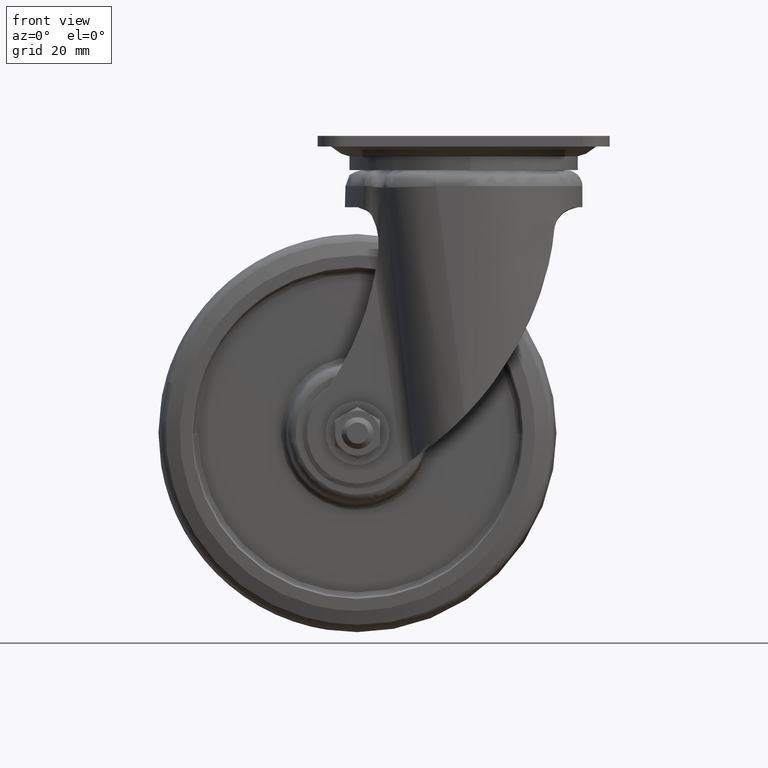
[diagram: clean part render]
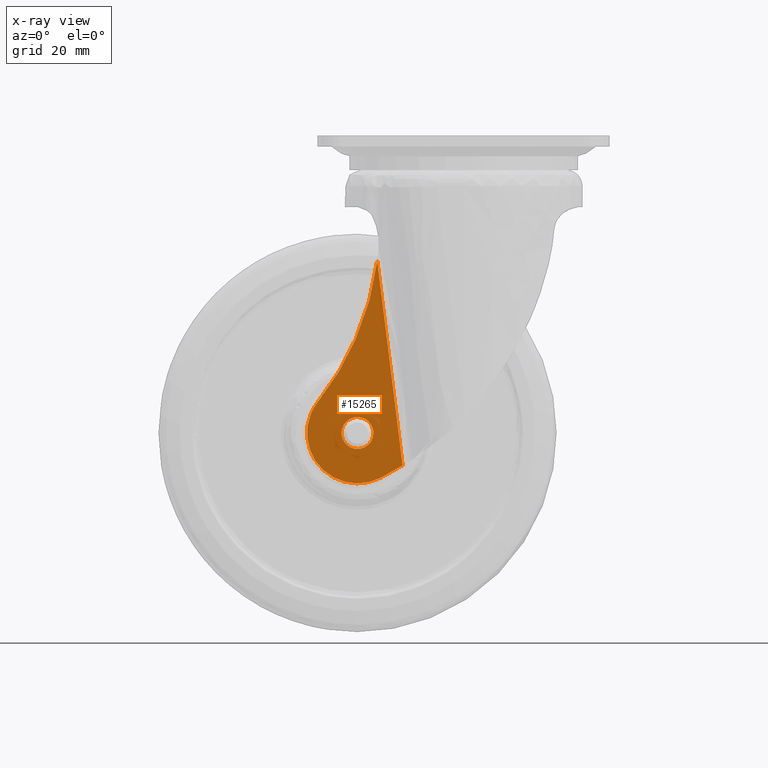
[diagram: x-ray — body ghosted, one internal face saturated and labeled with its STEP entity id]
A machine part, front view, then the same camera in x-ray: the body is ghosted and one INTERNAL B-rep face — a face not visible from any outside direction — is saturated and labeled: STEP entity #15265.
In plain terms, the highlighted face is a freeform B-spline surface patch.
Its self-contained STEP definition (entity closure, byte-faithful):
#9520=CARTESIAN_POINT('',(-34.000228461622932,25.649999999999999,-112.052359213901600));
#9521=VERTEX_POINT('',#9520);
#9527=CARTESIAN_POINT('',(-40.0,25.649999999999999,-106.0));
#9528=VERTEX_POINT('',#9527);
#9529=CARTESIAN_POINT('',(-40.0,25.649999999999999,-106.0));
#9530=CARTESIAN_POINT('',(-34.000000000000007,25.650000000000006,-106.0));
#9531=CARTESIAN_POINT('',(-34.0,25.649999999999999,-112.0));
#9532=CARTESIAN_POINT('',(-34.0,25.650000000000002,-112.026180105379940));
#9533=CARTESIAN_POINT('',(-34.000228461622939,25.649999999999995,-112.052359213901610));
#9541=(BOUNDED_CURVE()B_SPLINE_CURVE(2,(#9529,#9530,#9531,#9532,#9533),.UNSPECIFIED.,.F.,.U.)B_SPLINE_CURVE_WITH_KNOTS((3,2,3),(0.500000000000000,0.750000000000000,0.751539894361741),.UNSPECIFIED.)CURVE()GEOMETRIC_REPRESENTATION_ITEM()RATIONAL_B_SPLINE_CURVE((1.0,0.707106781186548,1.0,0.998195901535028,0.996414028038489))REPRESENTATION_ITEM(''));
#9542=EDGE_CURVE('',#9528,#9521,#9541,.T.);
#9544=CARTESIAN_POINT('',(-45.999771538377082,25.649999999999999,-111.947640786098500));
#9545=VERTEX_POINT('',#9544);
#9546=CARTESIAN_POINT('',(-45.999771538377082,25.650000000000002,-111.947640786098500));
#9547=CARTESIAN_POINT('',(-45.947867262666421,25.650000000000002,-105.999999999999990));
#9548=CARTESIAN_POINT('',(-40.0,25.649999999999999,-106.0));
#9556=(BOUNDED_CURVE()B_SPLINE_CURVE(2,(#9546,#9547,#9548),.UNSPECIFIED.,.F.,.U.)B_SPLINE_CURVE_WITH_KNOTS((3,3),(0.251539894361741,0.500000000000000),.UNSPECIFIED.)CURVE()GEOMETRIC_REPRESENTATION_ITEM()RATIONAL_B_SPLINE_CURVE((0.996414028038490,0.708910879651519,1.0))REPRESENTATION_ITEM(''));
#9557=EDGE_CURVE('',#9545,#9528,#9556,.T.);
#9603=CARTESIAN_POINT('',(-40.0,25.649999999999999,-118.0));
#9604=VERTEX_POINT('',#9603);
#9605=CARTESIAN_POINT('',(-40.0,25.649999999999999,-118.0));
#9606=CARTESIAN_POINT('',(-46.000000000000007,25.650000000000006,-118.000000000000010));
#9607=CARTESIAN_POINT('',(-46.0,25.649999999999999,-112.0));
#9608=CARTESIAN_POINT('',(-46.000000000000007,25.649999999999999,-111.973819894620120));
#9609=CARTESIAN_POINT('',(-45.999771538377082,25.649999999999999,-111.947640786098430));
#9617=(BOUNDED_CURVE()B_SPLINE_CURVE(2,(#9605,#9606,#9607,#9608,#9609),.UNSPECIFIED.,.F.,.U.)B_SPLINE_CURVE_WITH_KNOTS((3,2,3),(0.0,0.250000000000000,0.251539894361741),.UNSPECIFIED.)CURVE()GEOMETRIC_REPRESENTATION_ITEM()RATIONAL_B_SPLINE_CURVE((1.0,0.707106781186548,1.0,0.998195901535028,0.996414028038490))REPRESENTATION_ITEM(''));
#9618=EDGE_CURVE('',#9604,#9545,#9617,.T.);
#9620=CARTESIAN_POINT('',(-34.000228461622939,25.649999999999995,-112.052359213901610));
#9621=CARTESIAN_POINT('',(-34.052132737333579,25.650000000000002,-118.000000000000010));
#9622=CARTESIAN_POINT('',(-40.0,25.649999999999999,-118.0));
#9630=(BOUNDED_CURVE()B_SPLINE_CURVE(2,(#9620,#9621,#9622),.UNSPECIFIED.,.F.,.U.)B_SPLINE_CURVE_WITH_KNOTS((3,3),(0.751539894361741,1.0),.UNSPECIFIED.)CURVE()GEOMETRIC_REPRESENTATION_ITEM()RATIONAL_B_SPLINE_CURVE((0.996414028038489,0.708910879651520,1.0))REPRESENTATION_ITEM(''));
#9631=EDGE_CURVE('',#9521,#9604,#9630,.T.);
#14307=CARTESIAN_POINT('',(-32.554021026796953,25.649999999999999,-47.118806425796187));
#14308=VERTEX_POINT('',#14307);
#14316=CARTESIAN_POINT('',(-22.992116824442650,25.649999999999999,-124.213442283382190));
#14317=VERTEX_POINT('',#14316);
#14318=CARTESIAN_POINT('',(-22.992116824442650,25.649999999999999,-124.213442283382190));
#14319=CARTESIAN_POINT('',(-32.554021026796953,25.649999999999999,-47.118806425796187));
#14320=QUASI_UNIFORM_CURVE('',1,(#14318,#14319),.UNSPECIFIED.,.F.,.U.);
#14321=EDGE_CURVE('',#14317,#14308,#14320,.T.);
#15133=CARTESIAN_POINT('',(-31.332471452025452,25.649999999999999,-128.907807731191610));
#15134=VERTEX_POINT('',#15133);
#15135=CARTESIAN_POINT('',(-22.992116824442590,25.649999999999999,-124.213442283382190));
#15136=CARTESIAN_POINT('',(-27.070823144648671,25.650000000000002,-126.723139096384120));
#15137=CARTESIAN_POINT('',(-31.332471452025409,25.649999999999999,-128.907807731191700));
#15145=(BOUNDED_CURVE()B_SPLINE_CURVE(2,(#15135,#15136,#15137),.UNSPECIFIED.,.F.,.U.)CURVE()GEOMETRIC_REPRESENTATION_ITEM()QUASI_UNIFORM_CURVE()RATIONAL_B_SPLINE_CURVE((1.0,0.999241512080530,1.0))REPRESENTATION_ITEM(''));
#15146=EDGE_CURVE('',#14317,#15134,#15145,.T.);
#15181=CARTESIAN_POINT('',(-54.886477779603901,25.649999999999999,-100.193528749135400));
#15182=VERTEX_POINT('',#15181);
#15183=CARTESIAN_POINT('',(-31.332471452025452,25.649999999999999,-128.907807731191610));
#15184=CARTESIAN_POINT('',(-32.886279531500371,25.650000000000048,-129.705105969068000));
#15185=CARTESIAN_POINT('',(-35.703484104047867,25.650000000000041,-130.687247985084010));
#15186=CARTESIAN_POINT('',(-39.529384800221067,25.649999999999920,-131.080728028679000));
#15187=CARTESIAN_POINT('',(-42.418987367636369,25.650000000000109,-130.901572286537600));
#15188=CARTESIAN_POINT('',(-45.324661976748537,25.650000000000190,-130.329522770812590));
#15189=CARTESIAN_POINT('',(-48.042681460942340,25.649999999999419,-129.310043267980290));
#15190=CARTESIAN_POINT('',(-51.016070255613883,25.650000000000240,-127.594888139079700));
#15191=CARTESIAN_POINT('',(-53.458600687689199,25.650000000000059,-125.567008133455600));
#15192=CARTESIAN_POINT('',(-55.867210383586858,25.650000000000048,-122.662328496296690));
#15193=CARTESIAN_POINT('',(-57.426483615359437,25.649999999999359,-119.817621977732400));
#15194=CARTESIAN_POINT('',(-58.418917601374552,25.650000000001171,-116.884954567061200));
#15195=CARTESIAN_POINT('',(-59.015833820626732,25.649999999999281,-113.845882877121000));
#15196=CARTESIAN_POINT('',(-59.064303349302712,25.649999999998862,-110.264134625463400));
#15197=CARTESIAN_POINT('',(-58.398270145136671,25.650000000000770,-106.954986280188510));
#15198=CARTESIAN_POINT('',(-57.144720316869801,25.649999999999551,-103.545904433170510));
#15199=CARTESIAN_POINT('',(-55.930458589896674,25.650000000000169,-101.508872888962000));
#15200=CARTESIAN_POINT('',(-54.886477779603901,25.649999999999999,-100.193528749135400));
#15201=B_SPLINE_CURVE_WITH_KNOTS('',3,(#15183,#15184,#15185,#15186,#15187,#15188,#15189,#15190,#15191,#15192,#15193,#15194,#15195,#15196,#15197,#15198,#15199,#15200),.UNSPECIFIED.,.F.,.U.,(4,1,1,1,1,1,1,1,1,1,1,1,1,1,1,4),(0.000000273291320,5.239076476255697,8.866234905309781,11.485849801558510,13.903945712859780,17.732589660047910,20.150719176177748,24.180797022998700,27.203337421922448,31.434965254791191,33.853010169350142,36.472625368662150,40.704288833021621,44.532924887750333,46.547979714275037,51.585625031973407),.UNSPECIFIED.);
#15202=EDGE_CURVE('',#15134,#15182,#15201,.T.);
#15227=CARTESIAN_POINT('',(-32.554021026796782,25.649999999999999,-47.118806425796237));
#15228=CARTESIAN_POINT('',(-36.311953046621511,25.650000000000002,-76.773385177175584));
#15229=CARTESIAN_POINT('',(-54.886477779603723,25.649999999999999,-100.193528749135500));
#15237=(BOUNDED_CURVE()B_SPLINE_CURVE(2,(#15227,#15228,#15229),.UNSPECIFIED.,.F.,.U.)CURVE()GEOMETRIC_REPRESENTATION_ITEM()QUASI_UNIFORM_CURVE()RATIONAL_B_SPLINE_CURVE((1.0,0.963172606381922,1.0))REPRESENTATION_ITEM(''));
#15238=EDGE_CURVE('',#14308,#15182,#15237,.T.);
#15248=CARTESIAN_POINT('',(-60.784928459498467,25.649999999999999,-42.929154408448383));
#15249=CARTESIAN_POINT('',(-60.784928459498467,25.649999999999999,-135.185381209296710));
#15250=CARTESIAN_POINT('',(-21.194172269547082,25.649999999999999,-42.929154408448383));
#15251=CARTESIAN_POINT('',(-21.194172269547082,25.649999999999999,-135.185381209296710));
#15252=B_SPLINE_SURFACE_WITH_KNOTS('',1,1,((#15248,#15250),(#15249,#15251)),.UNSPECIFIED.,.F.,.F.,.U.,(2,2),(2,2),(0.0,92.256226800848268),(0.0,39.590756189951392),.UNSPECIFIED.);
#15253=ORIENTED_EDGE('',*,*,#15146,.F.);
#15254=ORIENTED_EDGE('',*,*,#14321,.T.);
#15255=ORIENTED_EDGE('',*,*,#15238,.T.);
#15256=ORIENTED_EDGE('',*,*,#15202,.F.);
#15257=EDGE_LOOP('',(#15253,#15254,#15255,#15256));
#15258=FACE_OUTER_BOUND('',#15257,.T.);
#15259=ORIENTED_EDGE('',*,*,#9542,.T.);
#15260=ORIENTED_EDGE('',*,*,#9631,.T.);
#15261=ORIENTED_EDGE('',*,*,#9618,.T.);
#15262=ORIENTED_EDGE('',*,*,#9557,.T.);
#15263=EDGE_LOOP('',(#15259,#15260,#15261,#15262));
#15264=FACE_BOUND('',#15263,.T.);
#15265=ADVANCED_FACE('',(#15258,#15264),#15252,.T.);